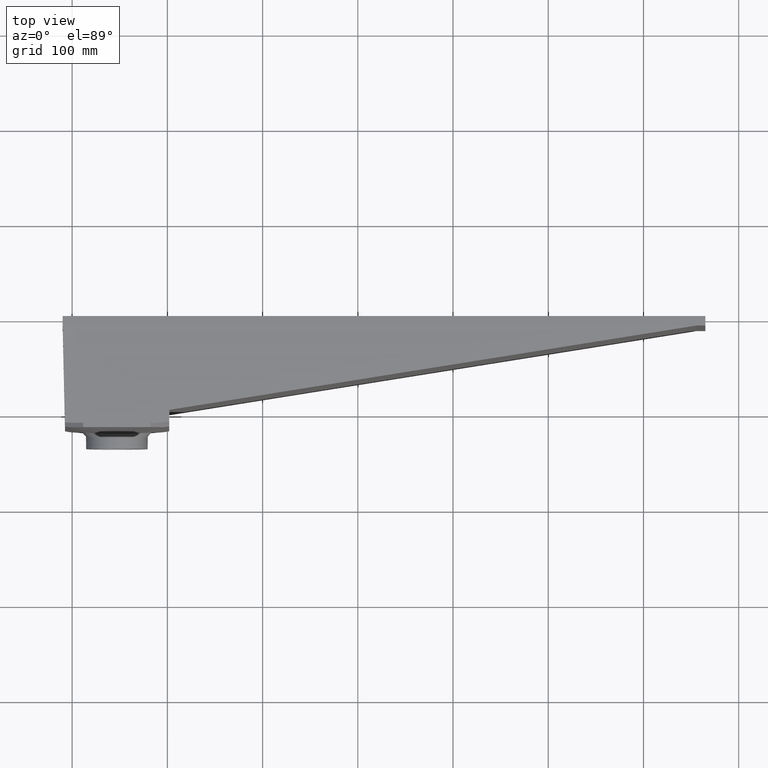
[diagram: clean part render]
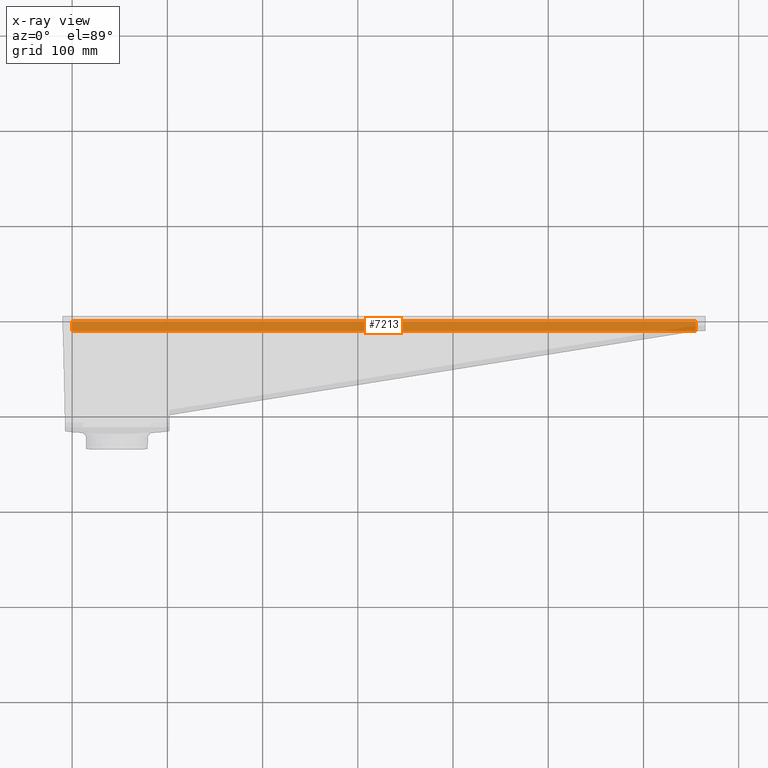
[diagram: x-ray — body ghosted, one internal face saturated and labeled with its STEP entity id]
A machine part, top view, then the same camera in x-ray: the body is ghosted and one INTERNAL B-rep face — a face not visible from any outside direction — is saturated and labeled: STEP entity #7213.
In plain terms, the highlighted planar face has unit normal (0, 0, -1).
Its self-contained STEP definition (entity closure, byte-faithful):
#35 = CARTESIAN_POINT ( 'NONE',  ( 0.0000000000000000000, -10.00000000000000000, -320.0000000000000000 ) ) ;
#177 = DIRECTION ( 'NONE',  ( 0.0000000000000000000, 0.0000000000000000000, -1.000000000000000000 ) ) ;
#190 = CARTESIAN_POINT ( 'NONE',  ( 0.0000000000000000000, 0.0000000000000000000, -320.0000000000000000 ) ) ;
#204 = DIRECTION ( 'NONE',  ( -1.000000000000000000, -0.0000000000000000000, -0.0000000000000000000 ) ) ;
#555 = CARTESIAN_POINT ( 'NONE',  ( 655.0000000000000000, 0.0000000000000000000, -320.0000000000000000 ) ) ;
#593 = VECTOR ( 'NONE', #1771, 1000.000000000000000 ) ;
#705 = ORIENTED_EDGE ( 'NONE', *, *, #5014, .F. ) ;
#1066 = ORIENTED_EDGE ( 'NONE', *, *, #2778, .T. ) ;
#1599 = VECTOR ( 'NONE', #5007, 1000.000000000000000 ) ;
#1601 = AXIS2_PLACEMENT_3D ( 'NONE', #2503, #177, #3115 ) ;
#1707 = EDGE_LOOP ( 'NONE', ( #5572, #705, #3728, #1066 ) ) ;
#1771 = DIRECTION ( 'NONE',  ( 0.0000000000000000000, 1.000000000000000000, 0.0000000000000000000 ) ) ;
#1817 = CARTESIAN_POINT ( 'NONE',  ( 0.0000000000000000000, -10.00000000000000000, -320.0000000000000000 ) ) ;
#1823 = VERTEX_POINT ( 'NONE', #4888 ) ;
#2103 = PLANE ( 'NONE',  #1601 ) ;
#2133 = LINE ( 'NONE', #1817, #593 ) ;
#2503 = CARTESIAN_POINT ( 'NONE',  ( 0.0000000000000000000, -10.00000000000000000, -320.0000000000000000 ) ) ;
#2778 = EDGE_CURVE ( 'NONE', #1823, #7444, #6204, .T. ) ;
#2816 = CARTESIAN_POINT ( 'NONE',  ( 0.0000000000000000000, 0.0000000000000000000, -320.0000000000000000 ) ) ;
#3115 = DIRECTION ( 'NONE',  ( -1.000000000000000000, 0.0000000000000000000, -0.0000000000000000000 ) ) ;
#3728 = ORIENTED_EDGE ( 'NONE', *, *, #6725, .F. ) ;
#4017 = LINE ( 'NONE', #7951, #6186 ) ;
#4823 = CARTESIAN_POINT ( 'NONE',  ( 655.0000000000000000, -10.00000000000000000, -320.0000000000000000 ) ) ;
#4888 = CARTESIAN_POINT ( 'NONE',  ( 655.0000000000000000, -10.00000000000000000, -320.0000000000000000 ) ) ;
#5007 = DIRECTION ( 'NONE',  ( 0.0000000000000000000, 1.000000000000000000, 0.0000000000000000000 ) ) ;
#5014 = EDGE_CURVE ( 'NONE', #7987, #5979, #2133, .T. ) ;
#5168 = VECTOR ( 'NONE', #204, 1000.000000000000000 ) ;
#5272 = EDGE_CURVE ( 'NONE', #7444, #5979, #7429, .T. ) ;
#5572 = ORIENTED_EDGE ( 'NONE', *, *, #5272, .T. ) ;
#5979 = VERTEX_POINT ( 'NONE', #2816 ) ;
#6186 = VECTOR ( 'NONE', #8174, 1000.000000000000000 ) ;
#6204 = LINE ( 'NONE', #4823, #1599 ) ;
#6725 = EDGE_CURVE ( 'NONE', #1823, #7987, #4017, .T. ) ;
#7213 = ADVANCED_FACE ( 'NONE', ( #7930 ), #2103, .F. ) ;
#7429 = LINE ( 'NONE', #190, #5168 ) ;
#7444 = VERTEX_POINT ( 'NONE', #555 ) ;
#7930 = FACE_OUTER_BOUND ( 'NONE', #1707, .T. ) ;
#7951 = CARTESIAN_POINT ( 'NONE',  ( 0.0000000000000000000, -10.00000000000000000, -320.0000000000000000 ) ) ;
#7987 = VERTEX_POINT ( 'NONE', #35 ) ;
#8174 = DIRECTION ( 'NONE',  ( -1.000000000000000000, -0.0000000000000000000, -0.0000000000000000000 ) ) ;